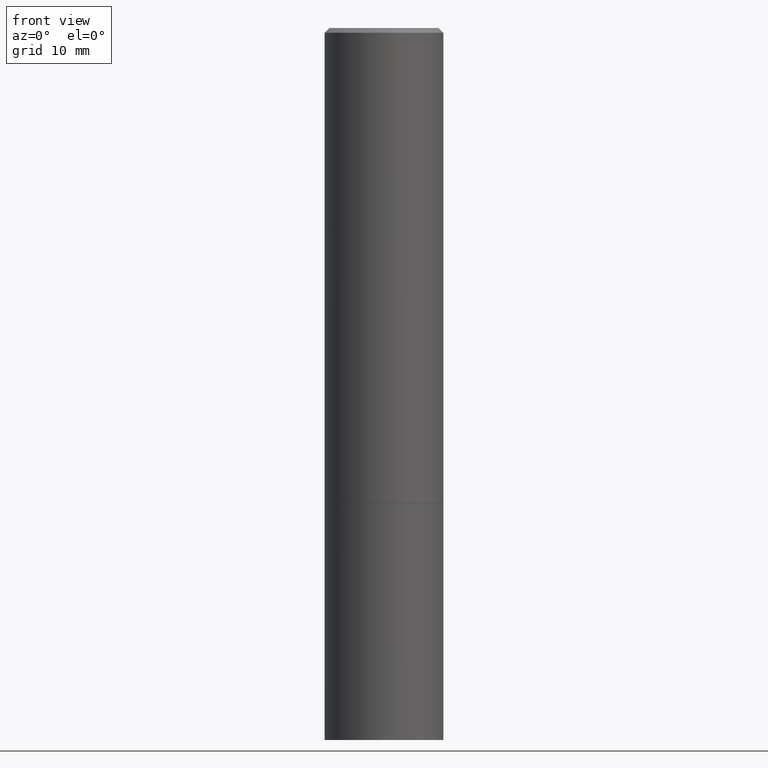
[diagram: clean part render]
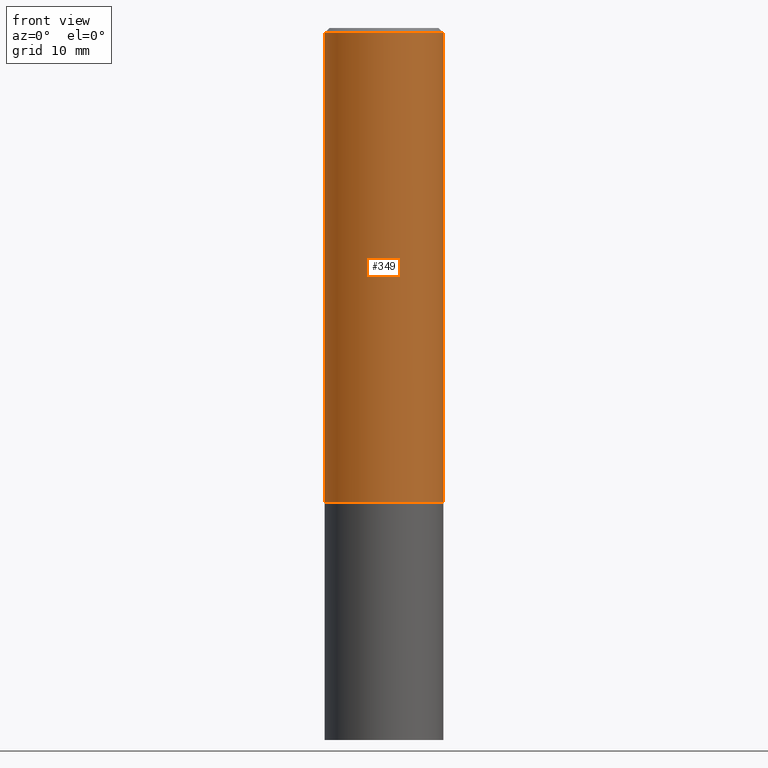
[diagram: same view with one face highlighted and labeled with its STEP entity id]
A machine part, front view. The second image highlights one B-rep face of the part: STEP entity #349.
In plain terms, the highlighted cylindrical surface (partial cylindrical patch) has radius 6.35 mm, axis along (-0, 0, 1).
Its self-contained STEP definition (entity closure, byte-faithful):
#6 = ORIENTED_EDGE ( 'NONE', *, *, #89, .F. ) ;
#9 = DIRECTION ( 'NONE',  ( 1.000000000000000000, -6.982962677686267499E-15, 0.000000000000000000 ) ) ;
#13 = CARTESIAN_POINT ( 'NONE',  ( 0.000000000000000000, 0.000000000000000000, 0.000000000000000000 ) ) ;
#16 = ORIENTED_EDGE ( 'NONE', *, *, #341, .T. ) ;
#19 = VERTEX_POINT ( 'NONE', #129 ) ;
#39 = AXIS2_PLACEMENT_3D ( 'NONE', #196, #138, #143 ) ;
#65 = ORIENTED_EDGE ( 'NONE', *, *, #106, .F. ) ;
#67 = AXIS2_PLACEMENT_3D ( 'NONE', #70, #124, #9 ) ;
#70 = CARTESIAN_POINT ( 'NONE',  ( 4.888492143564088712E-29, -6.979471196347448158E-15, -1.999000000000000110 ) ) ;
#72 = ORIENTED_EDGE ( 'NONE', *, *, #226, .T. ) ;
#85 = CARTESIAN_POINT ( 'NONE',  ( -0.2499999999999999722, -1.748293572161903489E-15, -1.999000000000000110 ) ) ;
#89 = EDGE_CURVE ( 'NONE', #19, #254, #272, .T. ) ;
#91 = CIRCLE ( 'NONE', #67, 0.2499999999999999722 ) ;
#92 = DIRECTION ( 'NONE',  ( -2.445468806185136597E-29, 3.491481338843145583E-15, 1.000000000000000000 ) ) ;
#94 = VERTEX_POINT ( 'NONE', #331 ) ;
#106 = EDGE_CURVE ( 'NONE', #151, #19, #215, .T. ) ;
#122 = DIRECTION ( 'NONE',  ( 1.000000000000000000, -6.982962677686266711E-15, 4.876176775795935793E-29 ) ) ;
#124 = DIRECTION ( 'NONE',  ( -2.445468806185136597E-29, 3.491481338843145583E-15, 1.000000000000000000 ) ) ;
#129 = CARTESIAN_POINT ( 'NONE',  ( -0.2499999999999998057, 1.675911042644702196E-15, -0.02000000000000004205 ) ) ;
#138 = DIRECTION ( 'NONE',  ( -2.445468806185136597E-29, 3.491481338843145583E-15, 1.000000000000000000 ) ) ;
#143 = DIRECTION ( 'NONE',  ( 1.000000000000000000, -6.982962677686266711E-15, 0.000000000000000000 ) ) ;
#150 = CARTESIAN_POINT ( 'NONE',  ( 0.2499999999999998057, -1.784954126219744611E-15, -0.02000000000000004205 ) ) ;
#151 = VERTEX_POINT ( 'NONE', #85 ) ;
#196 = CARTESIAN_POINT ( 'NONE',  ( 4.890937612370283668E-31, -6.982962677686305168E-17, -0.02000000000000004205 ) ) ;
#198 = CARTESIAN_POINT ( 'NONE',  ( 0.2499999999999998612, -1.745740669421565692E-15, 1.219044193948983248E-29 ) ) ;
#215 = LINE ( 'NONE', #361, #337 ) ;
#226 = EDGE_CURVE ( 'NONE', #94, #254, #253, .T. ) ;
#228 = AXIS2_PLACEMENT_3D ( 'NONE', #13, #92, #122 ) ;
#231 = FACE_OUTER_BOUND ( 'NONE', #290, .T. ) ;
#253 = LINE ( 'NONE', #198, #352 ) ;
#254 = VERTEX_POINT ( 'NONE', #150 ) ;
#267 = CYLINDRICAL_SURFACE ( 'NONE', #228, 0.2499999999999998612 ) ;
#272 = CIRCLE ( 'NONE', #39, 0.2499999999999998057 ) ;
#290 = EDGE_LOOP ( 'NONE', ( #65, #16, #72, #6 ) ) ;
#312 = DIRECTION ( 'NONE',  ( -2.445468806185136877E-29, 3.491481338843145188E-15, 1.000000000000000000 ) ) ;
#331 = CARTESIAN_POINT ( 'NONE',  ( 0.2499999999999999722, -8.725211865769015625E-15, -1.999000000000000110 ) ) ;
#337 = VECTOR ( 'NONE', #363, 39.37007874015748143 ) ;
#341 = EDGE_CURVE ( 'NONE', #151, #94, #91, .T. ) ;
#349 = ADVANCED_FACE ( 'NONE', ( #231 ), #267, .T. ) ;
#352 = VECTOR ( 'NONE', #312, 39.37007874015748143 ) ;
#361 = CARTESIAN_POINT ( 'NONE',  ( -0.2499999999999998612, 1.776356839400249479E-15, -1.229733772563725745E-29 ) ) ;
#363 = DIRECTION ( 'NONE',  ( -2.445468806185136877E-29, 3.491481338843145188E-15, 1.000000000000000000 ) ) ;